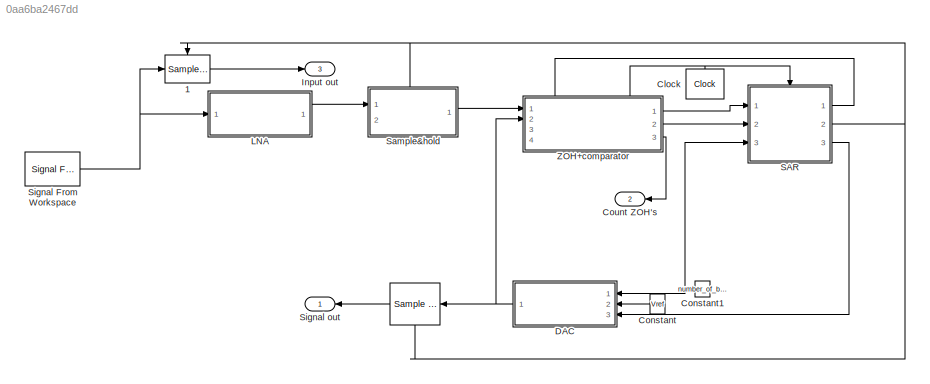
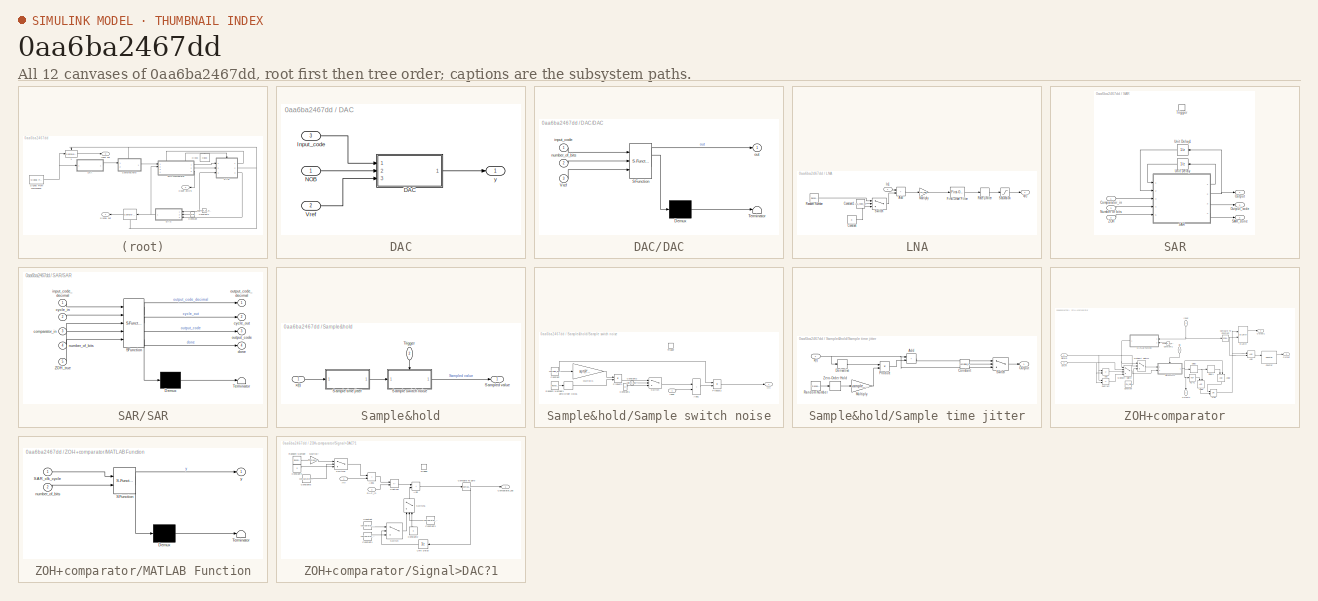
[diagram: thumbnail index - all 12 canvases of the model, root first then tree order]
MODEL slx_0aa6ba2467dd
KIND model
CONFIG AbsTol = auto
CONFIG EnableMultiTasking = off
CONFIG FixedStep = auto
CONFIG MaxStep = auto
CONFIG MinStep = auto
CONFIG RelTol = 1e-3
CONFIG SampleTimeConstraint = Unconstrained
CONFIG SolverName = VariableStepAuto
CONFIG StartTime = 0.0
CONFIG StopTime = 1
BLOCK [Reference]              REF=dspsigops/Sample
and Hold
  NameLocation = top
  Ports = [1, 1, 0, 1]
  SourceBlock = dspsigops/Sample\nand Hold
  SourceProductName = DSP System Toolbox
  SourceType = Sample and Hold
BLOCK [Reference]            1  REF=dspsigops/Sample
and Hold
  Ports = [1, 1, 0, 1]
  SourceBlock = dspsigops/Sample\nand Hold
  SourceProductName = DSP System Toolbox
  SourceType = Sample and Hold
BLOCK [Reference] Clock  REF=simulink_extras/Flip Flops/Clock
  NameLocation = left
  Ports = [0, 1]
  SourceBlock = simulink_extras/Flip Flops/Clock
  SourceProductBaseCode = SL
  SourceType = Digital clock
BLOCK [Constant] Constant
  NameLocation = top
  Value = Vref
BLOCK [Constant] Constant1
  NameLocation = top
  Value = number_of_bits
BLOCK [Outport] Count ZOH's
  NameLocation = top
  Port = 2
BLOCK [SubSystem] DAC
  Ports = [3, 1]
  RequestExecContextInheritance = off
  TreatAsAtomicUnit = on
BLOCK [SubSystem] DAC/DAC
  ErrorFcn = Stateflow.Translate.translate
  PermitHierarchicalResolution = ExplicitOnly
  Ports = [3, 1]
  RequestExecContextInheritance = off
  SFBlockType = MATLAB Function
  TreatAsAtomicUnit = on
BLOCK [Demux] DAC/DAC/ Demux 
  Outputs = 1
  Ports = [1, 1]
BLOCK [S-Function] DAC/DAC/ SFunction 
  EnableBusSupport = on
  FunctionName = sf_sfun
  PortCounts = [3 2]
  Ports = [3, 2]
  SFcnIsStateOwnerBlock = off
  SFunctionDeploymentMode = off
  Tag = Stateflow S-Function 2
BLOCK [Terminator] DAC/DAC/ Terminator 
BLOCK [Inport] DAC/DAC/Vref
  Port = 3
BLOCK [Inport] DAC/DAC/input_code
BLOCK [Inport] DAC/DAC/number_of_bits
  Port = 2
BLOCK [Outport] DAC/DAC/out
BLOCK [Inport] DAC/Input_code
  Port = 3
  VarSizeSig = Yes
BLOCK [Inport] DAC/NOB
BLOCK [Inport] DAC/Vref
  Port = 2
BLOCK [Outport] DAC/y
BLOCK [Outport] Input out
  NameLocation = top
  Port = 3
BLOCK [SubSystem] LNA
  Ports = [1, 1]
  RequestExecContextInheritance = off
BLOCK [Sum] LNA/Add
  IconShape = rectangular
  Ports = [2, 1]
BLOCK [Constant] LNA/Constant
  Value = 0
BLOCK [Constant] LNA/Constant1
  Value = LNA_noise_on
BLOCK [Reference] LNA/First-Order Filter  REF=spsFirstOrderFilterLib/First-Order
Filter
  Ports = [1, 1]
  SourceBlock = spsFirstOrderFilterLib/First-Order\nFilter
  SourceProductBaseCode = PS
  SourceType = First-Order Filter
BLOCK [Inport] LNA/In1
BLOCK [Gain] LNA/Multiply
  Gain = LNA_gain
BLOCK [RandomNumber] LNA/Random Number
  SampleTime = clk_period*(number_of_bits+1)
  Variance = LNA_input_referred_noise^2
BLOCK [RateLimiter] LNA/Rate Limiter
  FallingSlewLimit = -LNA_SR
  InitialCondition = ADC_input(1)
  RisingSlewLimit = LNA_SR
  SampleTimeMode = inherited
BLOCK [Saturate] LNA/Saturation
  LowerLimit = 0
  UpperLimit = Vref
BLOCK [Switch] LNA/Switch
  Criteria = u2 > Threshold
  InputSameDT = off
  SaturateOnIntegerOverflow = off
BLOCK [Outport] LNA/x(t)
BLOCK [SubSystem] SAR
  Ports = [3, 3, 0, 1]
  RequestExecContextInheritance = off
  TreatAsAtomicUnit = on
BLOCK [Inport] SAR/Comparator_in
  LatchByDelayingOutsideSignal = on
BLOCK [Inport] SAR/Number of bits
  Port = 3
BLOCK [Outport] SAR/Output
BLOCK [Outport] SAR/Output_code
  InitialOutput = zeros(number_of_bits, 1)
  Port = 3
  VarSizeSig = Yes
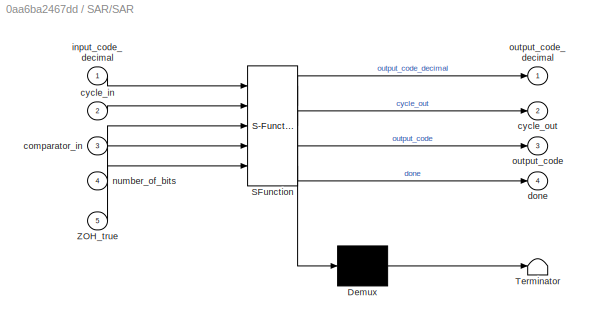
BLOCK [SubSystem] SAR/SAR
  ErrorFcn = Stateflow.Translate.translate
  PermitHierarchicalResolution = ExplicitOnly
  Ports = [5, 4]
  RequestExecContextInheritance = off
  SFBlockType = MATLAB Function
  TreatAsAtomicUnit = on
BLOCK [Demux] SAR/SAR/ Demux 
  Outputs = 1
  Ports = [1, 1]
BLOCK [S-Function] SAR/SAR/ SFunction 
  EnableBusSupport = on
  FunctionName = sf_sfun
  PortCounts = [5 5]
  Ports = [5, 5]
  SFcnIsStateOwnerBlock = off
  SFunctionDeploymentMode = off
  Tag = Stateflow S-Function 3
BLOCK [Terminator] SAR/SAR/ Terminator 
BLOCK [Inport] SAR/SAR/ZOH_true
  Port = 5
BLOCK [Inport] SAR/SAR/comparator_in
  Port = 3
BLOCK [Inport] SAR/SAR/cycle_in
  Port = 2
BLOCK [Outport] SAR/SAR/cycle_out
  Port = 2
BLOCK [Outport] SAR/SAR/done
  Port = 4
BLOCK [Inport] SAR/SAR/input_code_decimal
BLOCK [Inport] SAR/SAR/number_of_bits
  Port = 4
BLOCK [Outport] SAR/SAR/output_code
  Port = 3
BLOCK [Outport] SAR/SAR/output_code_decimal
BLOCK [Outport] SAR/SAR_done
  InitialOutput = 0
  Port = 2
BLOCK [TriggerPort] SAR/Trigger
  Ports = []
  StatesWhenEnabling = held
  VariantControl = Variant
BLOCK [UnitDelay] SAR/Unit Delay
  HasFrameUpgradeWarning = on
  SampleTime = -1
BLOCK [UnitDelay] SAR/Unit Delay1
  HasFrameUpgradeWarning = on
  NameLocation = top
  SampleTime = -1
BLOCK [Inport] SAR/ZOH
  LatchByDelayingOutsideSignal = on
  Port = 2
BLOCK [SubSystem] Sample&hold
  PortSchema = {"entries":[{"content":{"sides":[{"content":{"connectorIds":["In1"]},"type":"ConnectorPlacement.EquallySpacedRectSide","uuid":"7dc7a4da-613e-4b0b-8b13-7686a16d7398"},{"content":{"connectorIds":["Out1"],"side":"RIGHT"},"type":"ConnectorPlacement.EquallySpacedRectSide","uuid":"45e05abc-e512-455b-8082-6639e5b5b38c"},{"content":{"connectorIds":["In2"],"side":"TOP"},"type":"ConnectorPlacement.EquallySp...<+389ch>
  Ports = [2, 1]
  RequestExecContextInheritance = off
BLOCK [SubSystem] Sample&hold/Sample switch noise
  Ports = [1, 1, 0, 1]
  RequestExecContextInheritance = off
  TreatAsAtomicUnit = on
BLOCK [Sum] Sample&hold/Sample switch noise/Add1
  IconShape = rectangular
  Ports = [2, 1]
BLOCK [Constant] Sample&hold/Sample switch noise/Constant
  Value = sampling_gain
BLOCK [Constant] Sample&hold/Sample switch noise/Constant1
  Value = 0
BLOCK [Constant] Sample&hold/Sample switch noise/Constant2
  Value = switch_noise_on
BLOCK [Inport] Sample&hold/Sample switch noise/Input
BLOCK [Gain] Sample&hold/Sample switch noise/Multiply1
  Gain = sqrt(k*T/(sampling_gain*Cf))
  OutDataTypeStr = Inherit: Same as input
BLOCK [Product] Sample&hold/Sample switch noise/Product1
  Ports = [2, 1]
BLOCK [Product] Sample&hold/Sample switch noise/Product2
  Ports = [2, 1]
BLOCK [RandomNumber] Sample&hold/Sample switch noise/Random Number1
  Variance = switching_noise
BLOCK [Switch] Sample&hold/Sample switch noise/Switch
  Criteria = u2 > Threshold
  InputSameDT = off
  SaturateOnIntegerOverflow = off
BLOCK [TriggerPort] Sample&hold/Sample switch noise/Trigger
  Ports = []
  StatesWhenEnabling = held
  VariantControl = Variant
BLOCK [ZeroOrderHold] Sample&hold/Sample switch noise/Zero-Order Hold1
  SampleTime = -1
BLOCK [Outport] Sample&hold/Sample switch noise/y(t)
BLOCK [SubSystem] Sample&hold/Sample time jitter
  Ports = [1, 1]
  RequestExecContextInheritance = off
BLOCK [Sum] Sample&hold/Sample time jitter/Add
  IconShape = rectangular
  Ports = [2, 1]
BLOCK [Constant] Sample&hold/Sample time jitter/Constant
  Value = sampling_jitter_on
BLOCK [Derivative] Sample&hold/Sample time jitter/Derivative
BLOCK [Gain] Sample&hold/Sample time jitter/Multiply
  Gain = sample_time_jitter
BLOCK [Outport] Sample&hold/Sample time jitter/Output
BLOCK [Product] Sample&hold/Sample time jitter/Product
  Ports = [2, 1]
BLOCK [RandomNumber] Sample&hold/Sample time jitter/Random Number
  SampleTime = clk_period*(number_of_bits+1)
BLOCK [Switch] Sample&hold/Sample time jitter/Switch
  Criteria = u2 > Threshold
  InputSameDT = off
  SaturateOnIntegerOverflow = off
BLOCK [ZeroOrderHold] Sample&hold/Sample time jitter/Zero-Order Hold
  SampleTime = -1
BLOCK [Inport] Sample&hold/Sample time jitter/x(t)
BLOCK [Outport] Sample&hold/Sampled value
BLOCK [Inport] Sample&hold/Trigger
  NameLocation = left
  Port = 2
BLOCK [Inport] Sample&hold/x(t)
BLOCK [Reference] Signal From Workspace  REF=dspsrcs4/Signal From
Workspace
  Ports = [0, 1]
  SourceBlock = dspsrcs4/Signal From\nWorkspace
  SourceProductBaseCode = DS
  SourceType = Signal From Workspace
BLOCK [Outport] Signal out
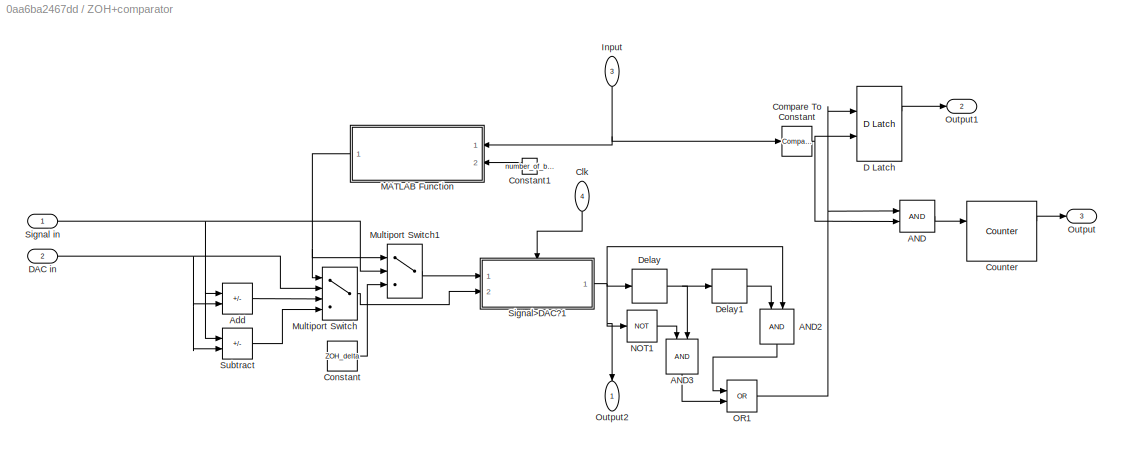
BLOCK [SubSystem] ZOH+comparator
  PortSchema = {"entries":[{"content":{"sides":[{"content":{"connectorIds":["In1","In2"]},"type":"ConnectorPlacement.EquallySpacedRectSide","uuid":"06f7f8f5-dbcc-499c-adfd-56368a53e82b"},{"content":{"connectorIds":["Out1","Out2","Out3"],"side":"RIGHT"},"type":"ConnectorPlacement.EquallySpacedRectSide","uuid":"5c800770-44b8-4ade-ac9f-191ddf2e034d"},{"content":{"connectorIds":["In3","In4"],"side":"TOP"},"type":"Co...<+559ch>
  Ports = [4, 3]
  RequestExecContextInheritance = off
BLOCK [Logic] ZOH+comparator/AND
  AllPortsSameDT = off
  IconShape = distinctive
  OutDataTypeStr = boolean
  Ports = [2, 1]
BLOCK [Logic] ZOH+comparator/AND2
  AllPortsSameDT = off
  IconShape = distinctive
  NameLocation = left
  OutDataTypeStr = boolean
  Ports = [2, 1]
BLOCK [Logic] ZOH+comparator/AND3
  AllPortsSameDT = off
  IconShape = distinctive
  NameLocation = left
  OutDataTypeStr = boolean
  Ports = [2, 1]
BLOCK [Sum] ZOH+comparator/Add
  IconShape = rectangular
  Inputs = +-
  Ports = [2, 1]
BLOCK [Inport] ZOH+comparator/Clk
  NameLocation = right
  Port = 4
BLOCK [Reference] ZOH+comparator/Compare To Constant  REF=simulink/Logic and Bit
Operations/Compare
To Constant
  Ports = [1, 1]
  SourceBlock = simulink/Logic and Bit\nOperations/Compare\nTo Constant
  SourceProductBaseCode = SL
  SourceType = Compare To Constant
BLOCK [Constant] ZOH+comparator/Constant
  Value = ZOH_delta
BLOCK [Constant] ZOH+comparator/Constant1
  NameLocation = top
  Value = number_of_bits
BLOCK [Reference] ZOH+comparator/Counter  REF=dspswit3/Counter
  Ports = [2, 2]
  SourceBlock = dspswit3/Counter
  SourceProductBaseCode = DS
  SourceType = Counter
BLOCK [Reference] ZOH+comparator/D Latch  REF=simulink_extras/Flip Flops/D Latch
  Ports = [2, 2]
  SourceBlock = simulink_extras/Flip Flops/D Latch
  SourceProductBaseCode = SL
  SourceType = DLatch
BLOCK [Inport] ZOH+comparator/DAC in
  Port = 2
BLOCK [Delay] ZOH+comparator/Delay
  InputPortMap = u0
  Ports = [1, 1]
BLOCK [Delay] ZOH+comparator/Delay1
  InputPortMap = u0
  Ports = [1, 1]
BLOCK [Inport] ZOH+comparator/Input
  NameLocation = left
  Port = 3
BLOCK [SubSystem] ZOH+comparator/MATLAB Function
  ErrorFcn = Stateflow.Translate.translate
  NameLocation = top
  PermitHierarchicalResolution = ExplicitOnly
  Ports = [2, 1]
  RequestExecContextInheritance = off
  SFBlockType = MATLAB Function
  TreatAsAtomicUnit = on
BLOCK [Demux] ZOH+comparator/MATLAB Function/ Demux 
  Outputs = 1
  Ports = [1, 1]
BLOCK [S-Function] ZOH+comparator/MATLAB Function/ SFunction 
  EnableBusSupport = on
  FunctionName = sf_sfun
  PortCounts = [2 2]
  Ports = [2, 2]
  SFcnIsStateOwnerBlock = off
  SFunctionDeploymentMode = off
  Tag = Stateflow S-Function 1
BLOCK [Terminator] ZOH+comparator/MATLAB Function/ Terminator 
BLOCK [Inport] ZOH+comparator/MATLAB Function/SAR_clk_cycle
BLOCK [Inport] ZOH+comparator/MATLAB Function/number_of_bits
  Port = 2
BLOCK [Outport] ZOH+comparator/MATLAB Function/y
BLOCK [MultiPortSwitch] ZOH+comparator/Multiport Switch
  InputSameDT = off
  Ports = [4, 1]
  SaturateOnIntegerOverflow = off
BLOCK [MultiPortSwitch] ZOH+comparator/Multiport Switch1
  DiagnosticForDefault = None
  InputSameDT = off
  Inputs = 2
  Ports = [3, 1]
  SaturateOnIntegerOverflow = off
BLOCK [Logic] ZOH+comparator/NOT1
  AllPortsSameDT = off
  IconShape = distinctive
  Operator = NOT
  OutDataTypeStr = boolean
  Ports = [1, 1]
BLOCK [Logic] ZOH+comparator/OR1
  AllPortsSameDT = off
  IconShape = distinctive
  Operator = OR
  OutDataTypeStr = boolean
  Ports = [2, 1]
BLOCK [Outport] ZOH+comparator/Output
  Port = 3
BLOCK [Outport] ZOH+comparator/Output1
  Port = 2
BLOCK [Outport] ZOH+comparator/Output2
  NameLocation = left
BLOCK [Inport] ZOH+comparator/Signal in
BLOCK [SubSystem] ZOH+comparator/Signal>DAC?1
  Ports = [2, 1, 0, 1]
  RequestExecContextInheritance = off
  TreatAsAtomicUnit = on
BLOCK [Sum] ZOH+comparator/Signal>DAC?1/Add
  IconShape = rectangular
  Ports = [2, 1]
BLOCK [Sum] ZOH+comparator/Signal>DAC?1/Add1
  IconShape = rectangular
  Ports = [2, 1]
BLOCK [Outport] ZOH+comparator/Signal>DAC?1/Comparator_out
BLOCK [Reference] ZOH+comparator/Signal>DAC?1/Compare To Zero  REF=simulink/Logic and Bit
Operations/Compare
To Zero
  Ports = [1, 1]
  SourceBlock = simulink/Logic and Bit\nOperations/Compare\nTo Zero
  SourceProductBaseCode = SL
  SourceType = Compare To Zero
BLOCK [Constant] ZOH+comparator/Signal>DAC?1/Constant
  Value = comparator_high_offset
BLOCK [Constant] ZOH+comparator/Signal>DAC?1/Constant1
  Value = comparator_low_offset
BLOCK [Constant] ZOH+comparator/Signal>DAC?1/Constant2
  NameLocation = right
  Value = 0
BLOCK [Constant] ZOH+comparator/Signal>DAC?1/Constant3
  Value = comparator_offset_on
BLOCK [Constant] ZOH+comparator/Signal>DAC?1/Constant4
  Value = 0
BLOCK [Constant] ZOH+comparator/Signal>DAC?1/Constant5
  Value = comparator_noise_on
BLOCK [Inport] ZOH+comparator/Signal>DAC?1/DAC_in
  Port = 2
BLOCK [Gain] ZOH+comparator/Signal>DAC?1/Multiply
  Gain = comparator_noise_rms
BLOCK [RandomNumber] ZOH+comparator/Signal>DAC?1/Random Number
BLOCK [Sum] ZOH+comparator/Signal>DAC?1/Subtract
  IconShape = rectangular
  Inputs = +-
  Ports = [2, 1]
BLOCK [Switch] ZOH+comparator/Signal>DAC?1/Switch
  Criteria = u2 > Threshold
  InputSameDT = off
  SaturateOnIntegerOverflow = off
BLOCK [Switch] ZOH+comparator/Signal>DAC?1/Switch1
  Criteria = u2 > Threshold
  InputSameDT = off
  NameLocation = right
  SaturateOnIntegerOverflow = off
BLOCK [Switch] ZOH+comparator/Signal>DAC?1/Switch2
  Criteria = u2 > Threshold
  InputSameDT = off
  SaturateOnIntegerOverflow = off
BLOCK [TriggerPort] ZOH+comparator/Signal>DAC?1/Trigger
  Ports = []
  StatesWhenEnabling = held
  VariantControl = Variant
BLOCK [UnitDelay] ZOH+comparator/Signal>DAC?1/Unit Delay
  HasFrameUpgradeWarning = on
  SampleTime = -1
BLOCK [Inport] ZOH+comparator/Signal>DAC?1/y(t)
BLOCK [Sum] ZOH+comparator/Subtract
  IconShape = rectangular
  Inputs = -+
  Ports = [2, 1]
LINE            1:1 -> Input out:1
LINE            :1 -> Signal out:1
NET Clock:1 -> SAR:trigger, ZOH+comparator:4
NET Constant1:1 -> DAC:1, SAR:3
LINE Constant:1 -> DAC:2
LINE DAC/DAC:1 -> DAC/y:1
LINE DAC/Input_code:1 -> DAC/DAC:1
LINE DAC/NOB:1 -> DAC/DAC:2
LINE DAC/Vref:1 -> DAC/DAC:3
NET DAC:1 ->            :1, ZOH+comparator:2
LINE LNA/Add:1 -> LNA/Multiply:1
LINE LNA/Constant1:1 -> LNA/Switch:2
LINE LNA/Constant:1 -> LNA/Switch:3
LINE LNA/First-Order Filter:1 -> LNA/Rate Limiter:1
LINE LNA/In1:1 -> LNA/Add:1
LINE LNA/Multiply:1 -> LNA/First-Order Filter:1
LINE LNA/Random Number:1 -> LNA/Switch:1
LINE LNA/Rate Limiter:1 -> LNA/Saturation:1
LINE LNA/Saturation:1 -> LNA/x(t):1
LINE LNA/Switch:1 -> LNA/Add:2
LINE LNA:1 -> Sample&hold:1
LINE SAR/Comparator_in:1 -> SAR/SAR:3
LINE SAR/Number of bits:1 -> SAR/SAR:4
LINE SAR/SAR:1 -> SAR/Unit Delay:1
NET SAR/SAR:2 -> SAR/Output:1, SAR/Unit Delay1:1
LINE SAR/SAR:3 -> SAR/Output_code:1
LINE SAR/SAR:4 -> SAR/SAR_done:1
LINE SAR/Unit Delay1:1 -> SAR/SAR:2
LINE SAR/Unit Delay:1 -> SAR/SAR:1
LINE SAR/ZOH:1 -> SAR/SAR:5
LINE SAR:1 -> ZOH+comparator:3
NET SAR:2 ->            1:trigger,            :trigger, Sample&hold:2
LINE SAR:3 -> DAC:3
LINE Sample&hold/Sample switch noise/Add1:1 -> Sample&hold/Sample switch noise/Product2:2
LINE Sample&hold/Sample switch noise/Constant1:1 -> Sample&hold/Sample switch noise/Switch:3
LINE Sample&hold/Sample switch noise/Constant2:1 -> Sample&hold/Sample switch noise/Switch:2
NET Sample&hold/Sample switch noise/Constant:1 -> Sample&hold/Sample switch noise/Multiply1:1, Sample&hold/Sample switch noise/Product2:1
LINE Sample&hold/Sample switch noise/Input:1 -> Sample&hold/Sample switch noise/Add1:2
LINE Sample&hold/Sample switch noise/Multiply1:1 -> Sample&hold/Sample switch noise/Product1:1
LINE Sample&hold/Sample switch noise/Product1:1 -> Sample&hold/Sample switch noise/Switch:1
LINE Sample&hold/Sample switch noise/Product2:1 -> Sample&hold/Sample switch noise/y(t):1
LINE Sample&hold/Sample switch noise/Random Number1:1 -> Sample&hold/Sample switch noise/Zero-Order Hold1:1
LINE Sample&hold/Sample switch noise/Switch:1 -> Sample&hold/Sample switch noise/Add1:1
LINE Sample&hold/Sample switch noise/Zero-Order Hold1:1 -> Sample&hold/Sample switch noise/Product1:2
LINE Sample&hold/Sample switch noise:1 -> Sample&hold/Sampled value:1
LINE Sample&hold/Sample time jitter/Add:1 -> Sample&hold/Sample time jitter/Switch:1
LINE Sample&hold/Sample time jitter/Constant:1 -> Sample&hold/Sample time jitter/Switch:2
LINE Sample&hold/Sample time jitter/Derivative:1 -> Sample&hold/Sample time jitter/Product:1
LINE Sample&hold/Sample time jitter/Multiply:1 -> Sample&hold/Sample time jitter/Product:2
LINE Sample&hold/Sample time jitter/Product:1 -> Sample&hold/Sample time jitter/Add:2
LINE Sample&hold/Sample time jitter/Random Number:1 -> Sample&hold/Sample time jitter/Zero-Order Hold:1
LINE Sample&hold/Sample time jitter/Switch:1 -> Sample&hold/Sample time jitter/Output:1
LINE Sample&hold/Sample time jitter/Zero-Order Hold:1 -> Sample&hold/Sample time jitter/Multiply:1
NET Sample&hold/Sample time jitter/x(t):1 -> Sample&hold/Sample time jitter/Add:1, Sample&hold/Sample time jitter/Derivative:1, Sample&hold/Sample time jitter/Switch:3
LINE Sample&hold/Sample time jitter:1 -> Sample&hold/Sample switch noise:1
LINE Sample&hold/Trigger:1 -> Sample&hold/Sample switch noise:trigger
LINE Sample&hold/x(t):1 -> Sample&hold/Sample time jitter:1
LINE Sample&hold:1 -> ZOH+comparator:1
NET Signal From Workspace:1 ->            1:1, LNA:1
LINE ZOH+comparator/AND2:1 -> ZOH+comparator/OR1:1
LINE ZOH+comparator/AND3:1 -> ZOH+comparator/OR1:2
LINE ZOH+comparator/AND:1 -> ZOH+comparator/Counter:1
LINE ZOH+comparator/Add:1 -> ZOH+comparator/Multiport Switch:3
LINE ZOH+comparator/Clk:1 -> ZOH+comparator/Signal>DAC?1:trigger
NET ZOH+comparator/Compare To Constant:1 -> ZOH+comparator/AND:2, ZOH+comparator/D Latch:2
LINE ZOH+comparator/Constant1:1 -> ZOH+comparator/MATLAB Function:2
LINE ZOH+comparator/Constant:1 -> ZOH+comparator/Multiport Switch1:3
LINE ZOH+comparator/Counter:1 -> ZOH+comparator/Output:1
LINE ZOH+comparator/D Latch:1 -> ZOH+comparator/Output1:1
NET ZOH+comparator/DAC in:1 -> ZOH+comparator/Add:2, ZOH+comparator/Multiport Switch:2, ZOH+comparator/Subtract:2
LINE ZOH+comparator/Delay1:1 -> ZOH+comparator/AND2:1
NET ZOH+comparator/Delay:1 -> ZOH+comparator/AND3:2, ZOH+comparator/Delay1:1
NET ZOH+comparator/Input:1 -> ZOH+comparator/Compare To Constant:1, ZOH+comparator/MATLAB Function:1
NET ZOH+comparator/MATLAB Function:1 -> ZOH+comparator/Multiport Switch1:1, ZOH+comparator/Multiport Switch:1
LINE ZOH+comparator/Multiport Switch1:1 -> ZOH+comparator/Signal>DAC?1:1
LINE ZOH+comparator/Multiport Switch:1 -> ZOH+comparator/Signal>DAC?1:2
LINE ZOH+comparator/NOT1:1 -> ZOH+comparator/AND3:1
NET ZOH+comparator/OR1:1 -> ZOH+comparator/AND:1, ZOH+comparator/D Latch:1
NET ZOH+comparator/Signal in:1 -> ZOH+comparator/Add:1, ZOH+comparator/Multiport Switch1:2, ZOH+comparator/Subtract:1
LINE ZOH+comparator/Signal>DAC?1/Add1:1 -> ZOH+comparator/Signal>DAC?1/Subtract:1
LINE ZOH+comparator/Signal>DAC?1/Add:1 -> ZOH+comparator/Signal>DAC?1/Compare To Zero:1
NET ZOH+comparator/Signal>DAC?1/Compare To Zero:1 -> ZOH+comparator/Signal>DAC?1/Comparator_out:1, ZOH+comparator/Signal>DAC?1/Unit Delay:1
LINE ZOH+comparator/Signal>DAC?1/Constant1:1 -> ZOH+comparator/Signal>DAC?1/Switch:3
LINE ZOH+comparator/Signal>DAC?1/Constant2:1 -> ZOH+comparator/Signal>DAC?1/Switch1:3
LINE ZOH+comparator/Signal>DAC?1/Constant3:1 -> ZOH+comparator/Signal>DAC?1/Switch1:2
LINE ZOH+comparator/Signal>DAC?1/Constant4:1 -> ZOH+comparator/Signal>DAC?1/Switch2:3
LINE ZOH+comparator/Signal>DAC?1/Constant5:1 -> ZOH+comparator/Signal>DAC?1/Switch2:2
LINE ZOH+comparator/Signal>DAC?1/Constant:1 -> ZOH+comparator/Signal>DAC?1/Switch:1
LINE ZOH+comparator/Signal>DAC?1/DAC_in:1 -> ZOH+comparator/Signal>DAC?1/Subtract:2
LINE ZOH+comparator/Signal>DAC?1/Multiply:1 -> ZOH+comparator/Signal>DAC?1/Switch2:1
LINE ZOH+comparator/Signal>DAC?1/Random Number:1 -> ZOH+comparator/Signal>DAC?1/Multiply:1
LINE ZOH+comparator/Signal>DAC?1/Subtract:1 -> ZOH+comparator/Signal>DAC?1/Add:1
LINE ZOH+comparator/Signal>DAC?1/Switch1:1 -> ZOH+comparator/Signal>DAC?1/Add:2
LINE ZOH+comparator/Signal>DAC?1/Switch2:1 -> ZOH+comparator/Signal>DAC?1/Add1:1
LINE ZOH+comparator/Signal>DAC?1/Switch:1 -> ZOH+comparator/Signal>DAC?1/Switch1:1
LINE ZOH+comparator/Signal>DAC?1/Unit Delay:1 -> ZOH+comparator/Signal>DAC?1/Switch:2
LINE ZOH+comparator/Signal>DAC?1/y(t):1 -> ZOH+comparator/Signal>DAC?1/Add1:2
NET ZOH+comparator/Signal>DAC?1:1 -> ZOH+comparator/AND2:2, ZOH+comparator/Delay:1, ZOH+comparator/NOT1:1, ZOH+comparator/Output2:1
LINE ZOH+comparator/Subtract:1 -> ZOH+comparator/Multiport Switch:4
LINE ZOH+comparator:1 -> SAR:1
LINE ZOH+comparator:2 -> SAR:2
LINE ZOH+comparator:3 -> Count ZOH's:1
note: NET lines group one-source signal fan-out (src -> all destinations, sorted); 1:1 wires keep LINE
CHART ZOH+comparator/MATLAB Function states=1 transitions=1
  STATE_LABEL 'eML_blk_kernel()'
  STATE_LABEL 'SCRIPT:\nfunction y = fcn(SAR_clk_cycle, number_of_bits)\n    if (SAR_clk_cycle)==0\n        y = 2;\n    elseif (SAR_clk_cycle)==1\n        y=3;\n    else\n        y=1;\n    end\nend\n'
CHART DAC/DAC states=1 transitions=1
  STATE_LABEL 'eML_blk_kernel()'
  STATE_LABEL "SCRIPT:\nfunction out = fcn(input_code, number_of_bits, Vref)\nout = Vref/(2^number_of_bits) * (bi2de(input_code.', 'left-msb'));\nend\n\n\n"
CHART SAR/SAR states=1 transitions=1
  STATE_LABEL 'eML_blk_kernel()'
  STATE_LABEL "SCRIPT:\nfunction [output_code_decimal, cycle_out, output_code, done] = fcn(input_code_decimal, cycle_in, comparator_in, number_of_bits, ZOH_true)\n\n    input_code = de2bi(input_code_decimal, 'left-msb');\n    output_code = [zeros(number_of_bits-size(input_code.',1),1); input_code.'];\n    cycle_out = cycle_in + 1;\n    done = 0;\n\n    if (cycle_in < 2)\n        \n        % Wait for ZOH to be determined\n ...<+860ch>"
CHART  states=0 transitions=0
CHART  states=0 transitions=0
CHART  states=0 transitions=0
